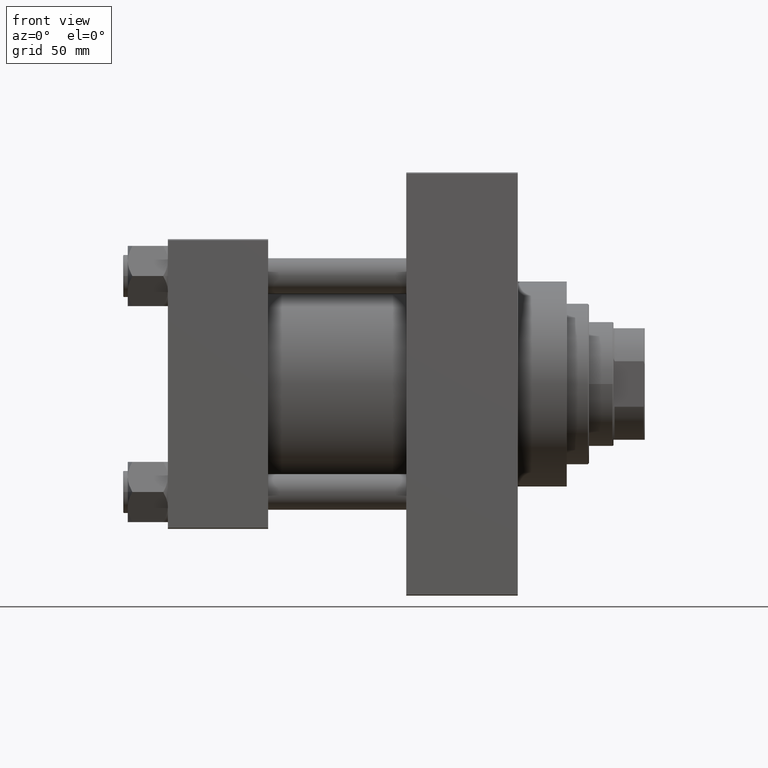
[diagram: clean part render]
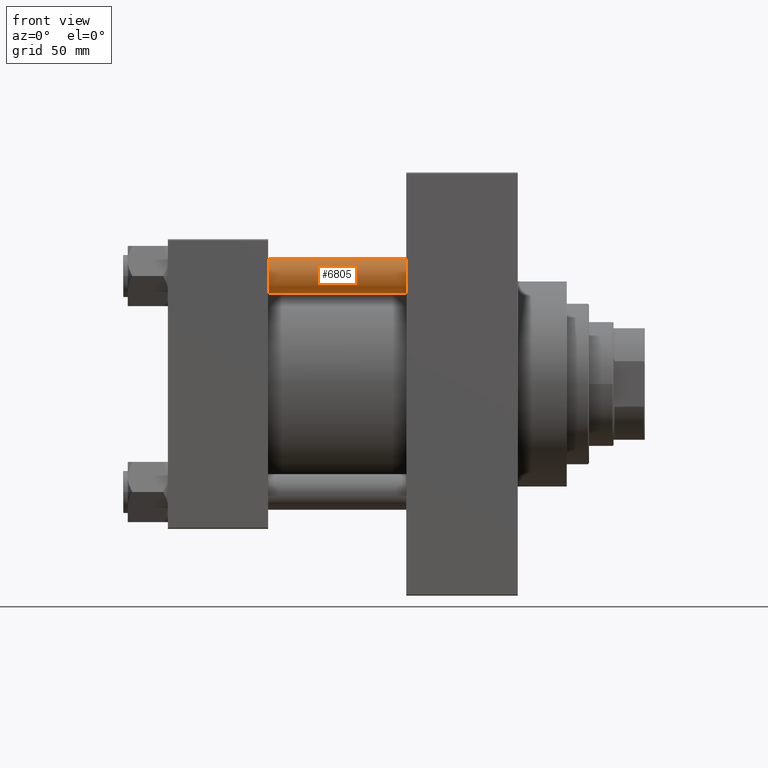
[diagram: same view with one face highlighted and labeled with its STEP entity id]
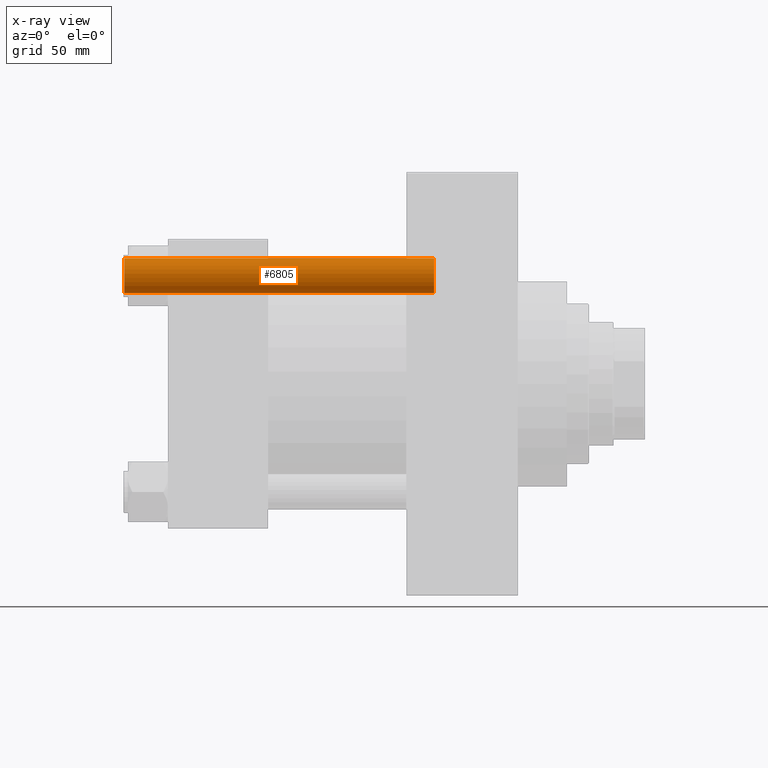
[diagram: x-ray of the same camera — body ghosted, the highlighted face saturated]
A machine part, front view. The second image highlights one B-rep face of the part: STEP entity #6805.
The next image is the same camera in x-ray: the body ghosted, the highlighted face saturated — about 0% of this face is hidden behind the body in this view.
In plain terms, the highlighted cylindrical surface (edge-blend (fillet) strip) has radius 8 mm, axis along (1, 0, 0).
Its self-contained STEP definition (entity closure, byte-faithful):
#839 = EDGE_CURVE ( 'NONE', #13295, #17118, #33043, .T. ) ;
#916 = VECTOR ( 'NONE', #11297, 1000.000000000000000 ) ;
#1335 = CYLINDRICAL_SURFACE ( 'NONE', #36148, 8.000000000000000000 ) ;
#1580 = DIRECTION ( 'NONE',  ( -0.000000000000000000, -0.000000000000000000, -1.000000000000000000 ) ) ;
#6805 = ADVANCED_FACE ( 'NONE', ( #19942 ), #1335, .T. ) ;
#8080 = VERTEX_POINT ( 'NONE', #10910 ) ;
#10002 = CIRCLE ( 'NONE', #43923, 8.000000000000000000 ) ;
#10910 = CARTESIAN_POINT ( 'NONE',  ( 8.000000000000000000, 9.797174393178825657E-16, 0.5000000000000281997 ) ) ;
#11297 = DIRECTION ( 'NONE',  ( -0.000000000000000000, -0.000000000000000000, -1.000000000000000000 ) ) ;
#13295 = VERTEX_POINT ( 'NONE', #21792 ) ;
#17118 = VERTEX_POINT ( 'NONE', #26660 ) ;
#17572 = CARTESIAN_POINT ( 'NONE',  ( 0.000000000000000000, 0.000000000000000000, 139.4999999999999716 ) ) ;
#18268 = AXIS2_PLACEMENT_3D ( 'NONE', #17572, #39288, #28194 ) ;
#19705 = CARTESIAN_POINT ( 'NONE',  ( 0.000000000000000000, 0.000000000000000000, 140.0000000000000000 ) ) ;
#19942 = FACE_OUTER_BOUND ( 'NONE', #29948, .T. ) ;
#20354 = EDGE_CURVE ( 'NONE', #8080, #17118, #10002, .T. ) ;
#21792 = CARTESIAN_POINT ( 'NONE',  ( -8.000000000000000000, 0.000000000000000000, 139.4999999999999716 ) ) ;
#23036 = ORIENTED_EDGE ( 'NONE', *, *, #38149, .T. ) ;
#23695 = DIRECTION ( 'NONE',  ( 1.000000000000000000, 0.000000000000000000, 0.000000000000000000 ) ) ;
#24237 = VERTEX_POINT ( 'NONE', #27864 ) ;
#26006 = LINE ( 'NONE', #40731, #39318 ) ;
#26660 = CARTESIAN_POINT ( 'NONE',  ( -8.000000000000000000, 0.000000000000000000, 0.5000000000000281997 ) ) ;
#26738 = CIRCLE ( 'NONE', #18268, 8.000000000000000000 ) ;
#27864 = CARTESIAN_POINT ( 'NONE',  ( 8.000000000000000000, 9.797174393178825657E-16, 139.4999999999999716 ) ) ;
#28148 = ORIENTED_EDGE ( 'NONE', *, *, #20354, .T. ) ;
#28194 = DIRECTION ( 'NONE',  ( 1.000000000000000000, 0.000000000000000000, 0.000000000000000000 ) ) ;
#29948 = EDGE_LOOP ( 'NONE', ( #23036, #35815, #28148, #31954 ) ) ;
#31954 = ORIENTED_EDGE ( 'NONE', *, *, #839, .F. ) ;
#33043 = LINE ( 'NONE', #43898, #916 ) ;
#35815 = ORIENTED_EDGE ( 'NONE', *, *, #45313, .T. ) ;
#36148 = AXIS2_PLACEMENT_3D ( 'NONE', #19705, #1580, #46232 ) ;
#37107 = DIRECTION ( 'NONE',  ( -0.000000000000000000, -0.000000000000000000, -1.000000000000000000 ) ) ;
#37701 = CARTESIAN_POINT ( 'NONE',  ( 0.000000000000000000, 0.000000000000000000, 0.5000000000000281997 ) ) ;
#38149 = EDGE_CURVE ( 'NONE', #13295, #24237, #26738, .T. ) ;
#39288 = DIRECTION ( 'NONE',  ( 0.000000000000000000, 0.000000000000000000, -1.000000000000000000 ) ) ;
#39318 = VECTOR ( 'NONE', #37107, 1000.000000000000000 ) ;
#40731 = CARTESIAN_POINT ( 'NONE',  ( 8.000000000000000000, 9.797174393178825657E-16, 140.0000000000000000 ) ) ;
#41799 = DIRECTION ( 'NONE',  ( -0.000000000000000000, -0.000000000000000000, 1.000000000000000000 ) ) ;
#43898 = CARTESIAN_POINT ( 'NONE',  ( -8.000000000000000000, 0.000000000000000000, 140.0000000000000000 ) ) ;
#43923 = AXIS2_PLACEMENT_3D ( 'NONE', #37701, #41799, #23695 ) ;
#45313 = EDGE_CURVE ( 'NONE', #24237, #8080, #26006, .T. ) ;
#46232 = DIRECTION ( 'NONE',  ( -1.000000000000000000, 0.000000000000000000, 0.000000000000000000 ) ) ;